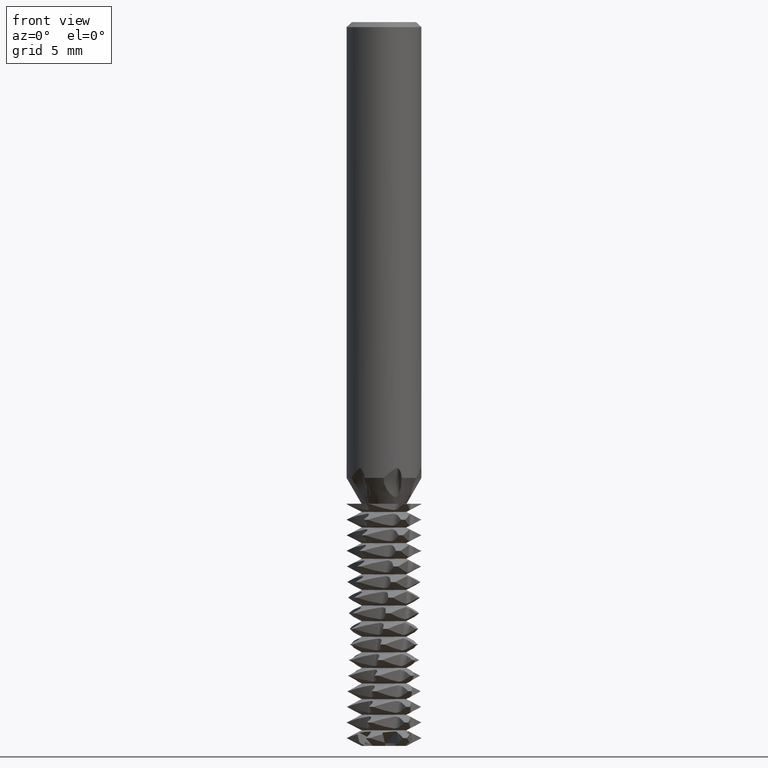
[diagram: clean part render]
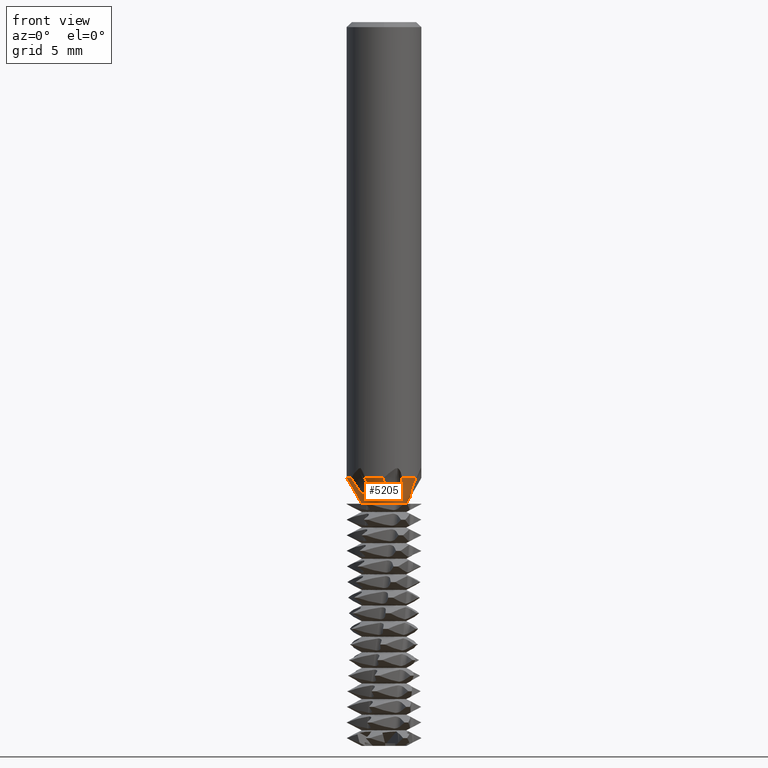
[diagram: same view with one face highlighted and labeled with its STEP entity id]
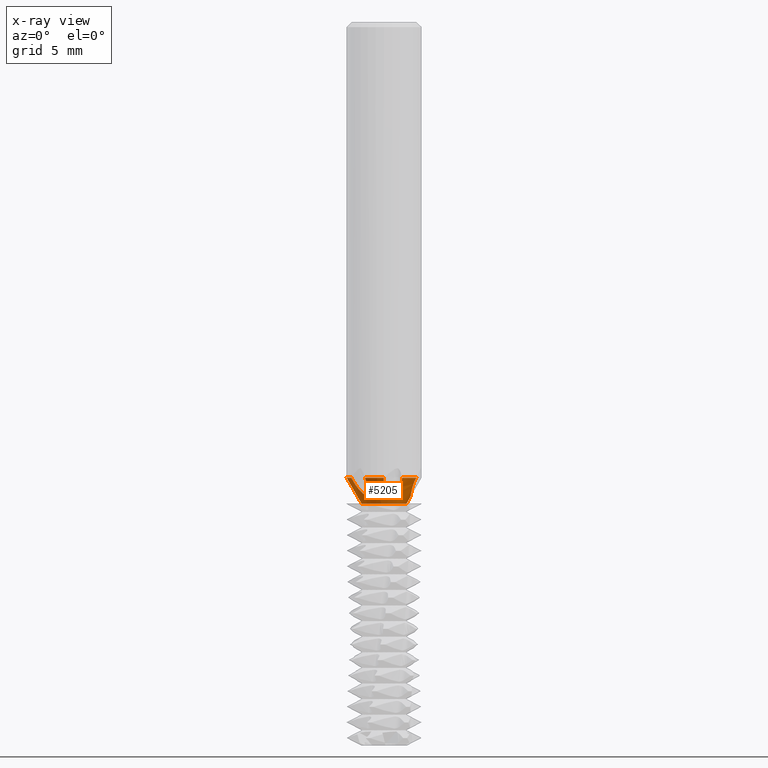
[diagram: x-ray of the same camera — body ghosted, the highlighted face saturated]
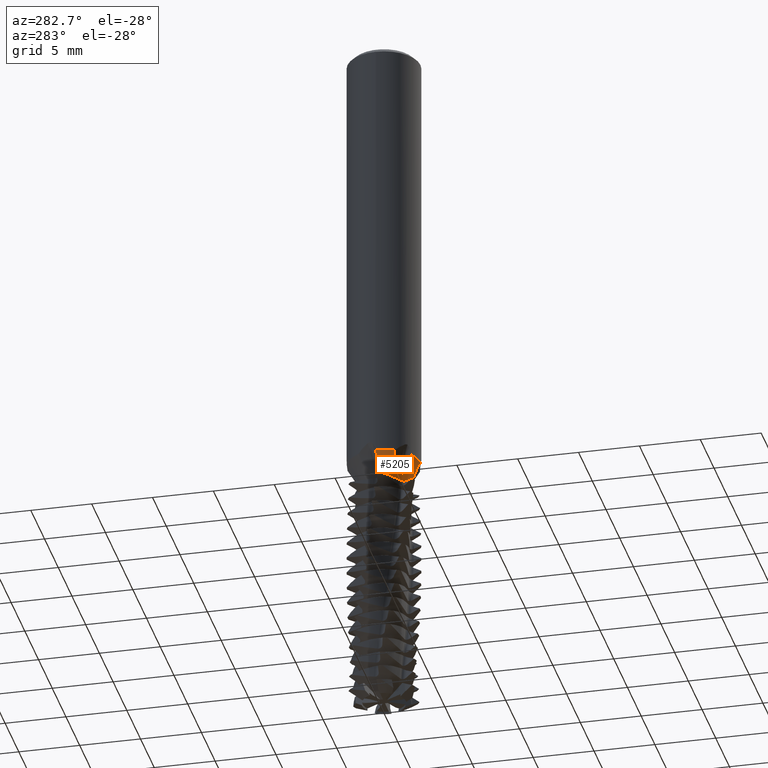
[diagram: same view with one face highlighted and labeled with its STEP entity id]
A machine part, front view. The second image highlights one B-rep face of the part: STEP entity #5205.
The next image is the same camera in x-ray: the body ghosted, the highlighted face saturated — about 0% of this face is hidden behind the body in this view.
A second angle (auxiliary view) of the same face is appended — the face is thin or edge-on in the first view.
In plain terms, the highlighted conical surface has half-angle 30 deg.
Its self-contained STEP definition (entity closure, byte-faithful):
#3307=EDGE_CURVE('',#3537,#7573,#8980,.T.);
#3537=VERTEX_POINT('',#9232);
#3563=VERTEX_POINT('',#9263);
#3577=VERTEX_POINT('',#9278);
#3637=VERTEX_POINT('',#9344);
#3847=VERTEX_POINT('',#9568);
#4025=EDGE_CURVE('',#7573,#3577,#9761,.T.);
#4201=EDGE_CURVE('',#3847,#3563,#9952,.T.);
#4227=EDGE_CURVE('',#5781,#4313,#9979,.T.);
#4313=VERTEX_POINT('',#10074);
#4377=VERTEX_POINT('',#10141);
#4431=EDGE_CURVE('',#3563,#3637,#10198,.T.);
#4681=VERTEX_POINT('',#10474);
#4727=EDGE_CURVE('',#8161,#3847,#10524,.T.);
#4797=VERTEX_POINT('',#10601);
#4867=EDGE_CURVE('',#4797,#8161,#10679,.T.);
#5007=EDGE_CURVE('',#5791,#7347,#10826,.T.);
#5205=ADVANCED_FACE('',(#11044),#11045,.T.);
#5455=VERTEX_POINT('',#11317);
#5781=VERTEX_POINT('',#11674);
#5791=VERTEX_POINT('',#11684);
#5849=EDGE_CURVE('',#6287,#5861,#11747,.T.);
#5861=VERTEX_POINT('',#11760);
#6109=VERTEX_POINT('',#12033);
#6233=EDGE_CURVE('',#6109,#4377,#12170,.T.);
#6287=VERTEX_POINT('',#12226);
#6339=VERTEX_POINT('',#12283);
#6661=EDGE_CURVE('',#4313,#4797,#12629,.T.);
#6895=VERTEX_POINT('',#12884);
#6915=EDGE_CURVE('',#6895,#3537,#12906,.T.);
#6929=EDGE_CURVE('',#3577,#4681,#12920,.T.);
#6989=EDGE_CURVE('',#5455,#6287,#12986,.T.);
#6995=EDGE_CURVE('',#4377,#6339,#12992,.T.);
#7347=VERTEX_POINT('',#13378);
#7373=EDGE_CURVE('',#3637,#6109,#13407,.T.);
#7493=EDGE_CURVE('',#7347,#6895,#13537,.T.);
#7573=VERTEX_POINT('',#13625);
#7983=EDGE_CURVE('',#5861,#5781,#14072,.T.);
#8131=EDGE_CURVE('',#6339,#5791,#14235,.T.);
#8161=VERTEX_POINT('',#14266);
#8185=EDGE_CURVE('',#5455,#4681,#14292,.T.);
#8980=B_SPLINE_CURVE_WITH_KNOTS('',3,(#16272,#16273,#16274,#16275,#16276,#16277,#16278,#16279,#16280,#16281,#16282,#16283,#16284,#16285,#16286,#16287,#16288,#16289,#16290,#16291,#16292,#16293,#16294,#16295,#16296,#16297,#16298,#16299,#16300,#16301,#16302,#16303,#16304,#16305,#16306,#16307,#16308,#16309,#16310,#16311,#16312,#16313,#16314,#16315,#16316,#16317,#16318,#16319,#16320,#16321,#16322,#16323),.UNSPECIFIED.,.F.,.F.,(4,2,2,2,2,2,2,2,2,2,2,2,2,2,2,2,2,2,2,2,2,2,2,2,2,4),(0.0,1.79892156464952,3.59784312929904,5.39676469394855,7.19568625859807,8.09689398824935,8.99810171790062,9.8993094475519,10.8005171772032,11.6961765187938,12.5918358603844,13.2328963691149,13.4855879126679,13.6471176097623,13.8086473068568,13.8697587230916,13.9308701393263,14.0530929717959,14.2345228541612,14.5010364919052,14.7675501296493,15.3132858626618,15.8590215956744,16.9504930616995,18.0499211646433,19.1493492675871),.UNSPECIFIED.);
#9232=CARTESIAN_POINT('',(-2.86296524862622,-2.05320867229369E-016,-36.757826998509));
#9263=CARTESIAN_POINT('',(0.781453119757737,-1.98327804736414,-38.0244497289772));
#9278=CARTESIAN_POINT('',(-2.16499437803357,3.69336668192884E-012,-37.9667480085785));
#9344=CARTESIAN_POINT('',(-0.0278542991693365,-2.99987068688265,-36.5204758472839));
#9568=CARTESIAN_POINT('',(1.02148350098126,-1.86558955432059,-38.0326686084301));
#9761=B_SPLINE_CURVE_WITH_KNOTS('',3,(#20670,#20671,#20672,#20673,#20674,#20675,#20676,#20677,#20678,#20679,#20680,#20681,#20682,#20683,#20684,#20685,#20686,#20687,#20688,#20689,#20690,#20691,#20692,#20693),.UNSPECIFIED.,.F.,.F.,(4,2,2,2,2,2,2,2,2,2,2,4),(0.0,1.3575415971684,1.97770147878749,2.33902558492398,2.55100621588176,2.70607941559937,2.85274831210491,3.03309770705154,3.32341211978844,3.90851040970902,5.28297228147467,7.46680945912721),.UNSPECIFIED.);
#9952=B_SPLINE_CURVE_WITH_KNOTS('',3,(#21849,#21850,#21851,#21852,#21853,#21854,#21855,#21856,#21857,#21858,#21859,#21860,#21861,#21862,#21863,#21864,#21865,#21866,#21867,#21868),.UNSPECIFIED.,.F.,.F.,(4,2,2,2,2,2,2,2,2,4),(0.0,1.30419701519525,2.02390744306957,2.45782086379581,2.70470641663282,2.8805199753024,3.0437800830323,3.23851401184411,3.5448359318654,4.1263073624252),.UNSPECIFIED.);
#9979=B_SPLINE_CURVE_WITH_KNOTS('',3,(#21931,#21932,#21933,#21934,#21935,#21936,#21937,#21938),.UNSPECIFIED.,.F.,.F.,(4,2,2,4),(0.0,0.631354581823274,1.40934126013356,2.09220906285891),.UNSPECIFIED.);
#10074=CARTESIAN_POINT('',(2.58403707332399,-1.52405787412657,-36.5204758472839));
#10141=CARTESIAN_POINT('',(-1.2234688333582,-2.2734790284442,-37.2448558426521));
#10198=B_SPLINE_CURVE_WITH_KNOTS('',3,(#22755,#22756,#22757,#22758,#22759,#22760,#22761,#22762,#22763,#22764),.UNSPECIFIED.,.F.,.F.,(4,2,2,2,4),(0.0,0.546723211207763,1.28128563835644,1.80064566287111,2.30334358990727),.UNSPECIFIED.);
#10474=CARTESIAN_POINT('',(-1.79938617,0.0,-38.6));
#10524=B_SPLINE_CURVE_WITH_KNOTS('',3,(#24409,#24410,#24411,#24412,#24413,#24414,#24415,#24416,#24417,#24418,#24419,#24420,#24421,#24422,#24423,#24424,#24425,#24426,#24427,#24428),.UNSPECIFIED.,.F.,.F.,(4,2,2,2,2,2,2,2,2,4),(0.0,1.30419701519525,2.02390744306957,2.45782086379581,2.70470641663282,2.8805199753024,3.0437800830323,3.23851401184411,3.5448359318654,4.1263073624252),.UNSPECIFIED.);
#10601=CARTESIAN_POINT('',(1.45576062139137,-2.62312047249192,-36.5204758472839));
#10679=B_SPLINE_CURVE_WITH_KNOTS('',3,(#25422,#25423,#25424,#25425,#25426,#25427,#25428,#25429,#25430,#25431,#25432,#25433,#25434,#25435,#25436,#25437,#25438,#25439,#25440,#25441),.UNSPECIFIED.,.F.,.F.,(4,2,2,2,2,2,2,2,2,4),(0.0,1.80060986239747,2.7009147935962,3.60121972479494,4.50152465599367,5.40182958719241,7.20243944958988,8.34679906101014,8.91897886672027,9.4911586724304),.UNSPECIFIED.);
#10826=B_SPLINE_CURVE_WITH_KNOTS('',3,(#26126,#26127,#26128,#26129,#26130,#26131,#26132,#26133,#26134,#26135),.UNSPECIFIED.,.F.,.F.,(4,2,2,2,4),(0.0,0.518910267288691,1.15208444474795,1.9815415407463,2.55415005124956),.UNSPECIFIED.);
#11044=FACE_OUTER_BOUND('',#27237,.T.);
#11045=CONICAL_SURFACE('',#27238,2.399693085,0.523598775598299);
#11317=CARTESIAN_POINT('',(1.79938617,2.20353973676211E-016,-38.6));
#11674=CARTESIAN_POINT('',(2.10829573166421,-0.314880770105264,-38.0244497289772));
#11684=CARTESIAN_POINT('',(-1.32684261190647,-1.66839727725887,-38.0244497289772));
#11747=B_SPLINE_CURVE_WITH_KNOTS('',3,(#30919,#30920,#30921,#30922,#30923,#30924,#30925,#30926,#30927,#30928,#30929,#30930,#30931,#30932,#30933,#30934,#30935,#30936,#30937,#30938,#30939,#30940,#30941,#30942),.UNSPECIFIED.,.F.,.F.,(4,2,2,2,2,2,2,2,2,2,2,4),(0.0,1.35754159716832,1.97770147878734,2.33902558492657,2.5510062158879,2.70607941560779,2.85274831211545,3.03309770706513,3.32341211980714,3.90851040973735,5.28297228152428,7.46680945920899),.UNSPECIFIED.);
#11760=CARTESIAN_POINT('',(2.12638969756715,-0.0481641157638644,-38.0326686084301));
#12033=CARTESIAN_POINT('',(-1.54380865566936,-2.5722859161999,-36.5204758472839));
#12170=B_SPLINE_CURVE_WITH_KNOTS('',3,(#33335,#33336,#33337,#33338,#33339,#33340,#33341,#33342,#33343,#33344,#33345,#33346,#33347,#33348,#33349,#33350,#33351,#33352,#33353,#33354,#33355,#33356,#33357,#33358,#33359,#33360,#33361,#33362,#33363,#33364,#33365,#33366,#33367,#33368,#33369,#33370,#33371,#33372,#33373,#33374,#33375,#33376,#33377,#33378,#33379,#33380),.UNSPECIFIED.,.F.,.F.,(4,2,2,2,2,2,2,2,2,2,2,2,2,2,2,2,2,2,2,2,2,2,4),(0.0,1.19030835882177,2.38061671764355,3.57092507646532,4.7612334352871,5.95154179410887,7.14185015293065,8.33215851175242,9.5224668705742,10.4222211647279,11.3219754588816,11.957849784399,12.2088651086477,12.3697082920767,12.5305514755056,12.5914172977519,12.6522831199983,12.7740147644909,12.9541109301382,13.4819090235225,14.0208308792366,14.5597527349508,15.637596446379),.UNSPECIFIED.);
#12226=CARTESIAN_POINT('',(2.16499437803356,-3.69594273362605E-012,-37.9667480085785));
#12283=CARTESIAN_POINT('',(-1.1049061965859,-1.81742543855674,-38.0326686084301));
#12629=CIRCLE('',#35726,3.0);
#12884=CARTESIAN_POINT('',(-3.0,-3.67381906146713E-016,-36.5204758472839));
#12906=LINE('',#37380,#37381);
#12920=LINE('',#37415,#37416);
#12986=LINE('',#37740,#37741);
#12992=B_SPLINE_CURVE_WITH_KNOTS('',3,(#37755,#37756,#37757,#37758,#37759,#37760,#37761,#37762,#37763,#37764,#37765,#37766,#37767,#37768,#37769,#37770,#37771,#37772,#37773,#37774,#37775,#37776,#37777,#37778),.UNSPECIFIED.,.F.,.F.,(4,2,2,2,2,2,2,2,2,2,2,4),(0.0,1.36486729440892,1.98357384965838,2.32484563536717,2.52868781618786,2.68237915094833,2.82838490438066,3.00987566558399,3.30581825100958,3.9112626719492,6.2724748571968,7.37736186497033),.UNSPECIFIED.);
#13378=CARTESIAN_POINT('',(-2.61189137249331,-1.47581281275608,-36.5204758472839));
#13407=CIRCLE('',#40253,3.0);
#13537=CIRCLE('',#41013,3.0);
#13625=CARTESIAN_POINT('',(-2.58062501028295,-0.0771844237953855,-37.2448558426521));
#14072=B_SPLINE_CURVE_WITH_KNOTS('',3,(#43422,#43423,#43424,#43425,#43426,#43427,#43428,#43429,#43430,#43431,#43432,#43433,#43434,#43435,#43436,#43437,#43438,#43439,#43440,#43441,#43442,#43443,#43444,#43445),.UNSPECIFIED.,.F.,.F.,(4,2,2,2,2,2,2,2,2,2,2,4),(0.0,1.35754159716832,1.97770147878734,2.33902558492657,2.5510062158879,2.70607941560779,2.85274831211545,3.03309770706513,3.32341211980714,3.90851040973735,5.28297228152428,7.46680945920899),.UNSPECIFIED.);
#14235=B_SPLINE_CURVE_WITH_KNOTS('',3,(#44164,#44165,#44166,#44167,#44168,#44169,#44170,#44171,#44172,#44173,#44174,#44175,#44176,#44177,#44178,#44179,#44180,#44181,#44182,#44183,#44184,#44185,#44186,#44187),.UNSPECIFIED.,.F.,.F.,(4,2,2,2,2,2,2,2,2,2,2,4),(0.0,1.36486729440892,1.98357384965838,2.32484563536717,2.52868781618786,2.68237915094833,2.82838490438066,3.00987566558399,3.30581825100958,3.9112626719492,6.2724748571968,7.37736186497033),.UNSPECIFIED.);
#14266=CARTESIAN_POINT('',(1.35715617692474,-2.19629460464882,-37.2448558426521));
#14292=CIRCLE('',#44531,1.79938617);
#16272=CARTESIAN_POINT('',(-5.60865937198833,4.49160101712834,-29.2709615960817));
#16273=CARTESIAN_POINT('',(-5.53417943615459,4.14075545272088,-29.7515122013028));
#16274=CARTESIAN_POINT('',(-5.44437967084137,3.77194824815466,-30.2532068101509));
#16275=CARTESIAN_POINT('',(-5.22340165139991,3.02417260660068,-31.2719130887645));
#16276=CARTESIAN_POINT('',(-5.09211627073529,2.64496117692198,-31.7887231259066));
#16277=CARTESIAN_POINT('',(-4.77622905463111,1.91200858271408,-32.8176739152328));
#16278=CARTESIAN_POINT('',(-4.59104662786163,1.55813602903107,-33.3299095047367));
#16279=CARTESIAN_POINT('',(-4.16227896952514,0.927883891886691,-34.3425408306651));
#16280=CARTESIAN_POINT('',(-3.91808717783326,0.65307615687016,-34.8436572123733));
#16281=CARTESIAN_POINT('',(-3.52382998832685,0.335020471456039,-35.5876191925418));
#16282=CARTESIAN_POINT('',(-3.37970458659504,0.238079482290927,-35.8496736439336));
#16283=CARTESIAN_POINT('',(-3.07518078675563,0.0765550563978221,-36.3901196137103));
#16284=CARTESIAN_POINT('',(-2.91487270829785,0.0120303712761149,-36.6685795759934));
#16285=CARTESIAN_POINT('',(-2.58991798567535,-0.0810987368559561,-37.2293493297819));
#16286=CARTESIAN_POINT('',(-2.42524000643959,-0.109877140415627,-37.5118632278129));
#16287=CARTESIAN_POINT('',(-2.10267367810806,-0.137587492294584,-38.0671127432704));
#16288=CARTESIAN_POINT('',(-1.94479077136786,-0.136675214724876,-38.339843737345));
#16289=CARTESIAN_POINT('',(-1.64604974950732,-0.115680414712945,-38.8585545809848));
#16290=CARTESIAN_POINT('',(-1.4832792880177,-0.0935546612799582,-39.1427549125285));
#16291=CARTESIAN_POINT('',(-1.15864787109507,-0.0295768329008364,-39.7095823477714));
#16292=CARTESIAN_POINT('',(-0.996872798866826,0.0120142582102949,-39.9922880594309));
#16293=CARTESIAN_POINT('',(-0.739436587657934,0.0859679937361255,-40.4289197218717));
#16294=CARTESIAN_POINT('',(-0.609138697059832,0.126616817028404,-40.6459992119376));
#16295=CARTESIAN_POINT('',(-0.444754777656117,0.176164651136265,-40.8894693067361));
#16296=CARTESIAN_POINT('',(-0.386961242049173,0.193227014641144,-40.9706189560452));
#16297=CARTESIAN_POINT('',(-0.300990999917641,0.21626246249406,-41.0761786320026));
#16298=CARTESIAN_POINT('',(-0.262532427396543,0.226042939014822,-41.1199920060905));
#16299=CARTESIAN_POINT('',(-0.178257790441458,0.244014996455153,-41.1971321765933));
#16300=CARTESIAN_POINT('',(-0.132615809415084,0.252222716498536,-41.23064518536));
#16301=CARTESIAN_POINT('',(-0.0629589130829037,0.259557002617503,-41.2551767765774));
#16302=CARTESIAN_POINT('',(-0.0425736441916063,0.261183415970428,-41.2596883161231));
#16303=CARTESIAN_POINT('',(-0.00106468187603169,0.263199845352608,-41.2621702170555));
#16304=CARTESIAN_POINT('',(0.0200606745280759,0.263585693603372,-41.2601160893507));
#16305=CARTESIAN_POINT('',(0.0815823507163757,0.262982255764411,-41.2449274907678));
#16306=CARTESIAN_POINT('',(0.12050574064483,0.260231569038201,-41.2225785834374));
#16307=CARTESIAN_POINT('',(0.201585084383746,0.252293708447356,-41.1625108950263));
#16308=CARTESIAN_POINT('',(0.251656841733575,0.244985636387325,-41.1104907109332));
#16309=CARTESIAN_POINT('',(0.348440086522747,0.22959090888411,-40.9978371366217));
#16310=CARTESIAN_POINT('',(0.405774433016841,0.219249129694851,-40.9196619192423));
#16311=CARTESIAN_POINT('',(0.516001566632785,0.199717509594923,-40.7598523024348));
#16312=CARTESIAN_POINT('',(0.568851010012465,0.19051810011117,-40.6781891809059));
#16313=CARTESIAN_POINT('',(0.713105876462561,0.16687273244768,-40.4502925398268));
#16314=CARTESIAN_POINT('',(0.811393517616152,0.152842439647328,-40.2872560943947));
#16315=CARTESIAN_POINT('',(1.01074255072176,0.130896683559816,-39.9519335659103));
#16316=CARTESIAN_POINT('',(1.11167351430138,0.122958315292648,-39.7795714597108));
#16317=CARTESIAN_POINT('',(1.41350765059492,0.109044430379915,-39.2615928199119));
#16318=CARTESIAN_POINT('',(1.61349469015849,0.113392523494834,-38.9150806723612));
#16319=CARTESIAN_POINT('',(1.97774621799979,0.138991244197607,-38.2826224444054));
#16320=CARTESIAN_POINT('',(2.17803997474166,0.163005422432741,-37.9337201313293));
#16321=CARTESIAN_POINT('',(2.57638909047377,0.230602420482324,-37.2364517165458));
#16322=CARTESIAN_POINT('',(2.77440974580383,0.273968580351373,-36.888044802318));
#16323=CARTESIAN_POINT('',(2.95335182971889,0.319328169013063,-36.5714584443562));
#20670=CARTESIAN_POINT('',(-2.99931765054515,0.0773502190339354,-36.5199304452602));
#20671=CARTESIAN_POINT('',(-2.78074035795917,-0.0241772525160376,-36.9029251428186));
#20672=CARTESIAN_POINT('',(-2.56313900872552,-0.109818554556673,-37.273107019754));
#20673=CARTESIAN_POINT('',(-2.293980617172,-0.0838003532439102,-37.7406960607725));
#20674=CARTESIAN_POINT('',(-2.23004876416744,-0.055364957207353,-37.8534381216402));
#20675=CARTESIAN_POINT('',(-2.15692145503528,0.00519778589404541,-37.9809156987621));
#20676=CARTESIAN_POINT('',(-2.1353285481792,0.0313960376349708,-38.0180814082639));
#20677=CARTESIAN_POINT('',(-2.10967966677262,0.0773256639451755,-38.0602242397376));
#20678=CARTESIAN_POINT('',(-2.10107420516676,0.0970488837897007,-38.073794322822));
#20679=CARTESIAN_POINT('',(-2.09014524125947,0.135908226970162,-38.08886001659));
#20680=CARTESIAN_POINT('',(-2.08690559848674,0.153249604498496,-38.0924058819131));
#20681=CARTESIAN_POINT('',(-2.08385146512164,0.188524853356053,-38.0926736534854));
#20682=CARTESIAN_POINT('',(-2.08395032652219,0.20533692273776,-38.0897475913529));
#20683=CARTESIAN_POINT('',(-2.08707039710097,0.241664690931274,-38.0777239117512));
#20684=CARTESIAN_POINT('',(-2.09070327412928,0.260288962943429,-38.0675753237835));
#20685=CARTESIAN_POINT('',(-2.10288941912787,0.304461948874601,-38.0366159082334));
#20686=CARTESIAN_POINT('',(-2.11343347783885,0.328545680706678,-38.0122242543083));
#20687=CARTESIAN_POINT('',(-2.14717586468728,0.390460560511437,-37.9371674222859));
#20688=CARTESIAN_POINT('',(-2.17619369780695,0.424471215292881,-37.8764858430212));
#20689=CARTESIAN_POINT('',(-2.27017118765268,0.514622779260884,-37.6856954438428));
#20690=CARTESIAN_POINT('',(-2.35446214160111,0.561459651964347,-37.5243387682715));
#20691=CARTESIAN_POINT('',(-2.56965366136249,0.660463455586712,-37.121442192171));
#20692=CARTESIAN_POINT('',(-2.71840490010319,0.708044347968236,-36.8514791242517));
#20693=CARTESIAN_POINT('',(-2.8940623821179,0.791386349178679,-36.5199304452602));
#21849=CARTESIAN_POINT('',(1.4326715706009,-2.63616038890813,-36.5199304452602));
#21850=CARTESIAN_POINT('',(1.4121477635746,-2.40553621100626,-36.8878753704346));
#21851=CARTESIAN_POINT('',(1.38011736951472,-2.19119231357815,-37.2313035371813));
#21852=CARTESIAN_POINT('',(1.23601169008594,-1.95883453790594,-37.70486165613));
#21853=CARTESIAN_POINT('',(1.17614696554221,-1.91189718679116,-37.8292139108563));
#21854=CARTESIAN_POINT('',(1.08485365479178,-1.87307310841984,-37.9676994732728));
#21855=CARTESIAN_POINT('',(1.04954660626413,-1.86586212340776,-38.0090431203485));
#21856=CARTESIAN_POINT('',(0.994786155433301,-1.86516119027006,-38.0554294237094));
#21857=CARTESIAN_POINT('',(0.972769701248624,-1.86707376060821,-38.0703832339884));
#21858=CARTESIAN_POINT('',(0.932716017237476,-1.87641083475452,-38.0873305155262));
#21859=CARTESIAN_POINT('',(0.915800170445377,-1.88198786244427,-38.0916205061569));
#21860=CARTESIAN_POINT('',(0.883252680953473,-1.89649396186954,-38.0931504696259));
#21861=CARTESIAN_POINT('',(0.868566333956174,-1.90473110916482,-38.0908270668656));
#21862=CARTESIAN_POINT('',(0.838604289870541,-1.92489463035173,-38.0801044190121));
#21863=CARTESIAN_POINT('',(0.824355167800011,-1.93682549719624,-38.0708374757733));
#21864=CARTESIAN_POINT('',(0.792550562957857,-1.96786974013774,-38.0423894629918));
#21865=CARTESIAN_POINT('',(0.777079961661563,-1.98786387887037,-38.0199573053666));
#21866=CARTESIAN_POINT('',(0.741608941186446,-2.04277722064068,-37.9529607286589));
#21867=CARTESIAN_POINT('',(0.726571475822743,-2.08030873736105,-37.9001458389201));
#21868=CARTESIAN_POINT('',(0.716673857411956,-2.1142734980412,-37.8499343938791));
#21931=CARTESIAN_POINT('',(2.09509680968964,-0.208850370411364,-38.0698286646325));
#21932=CARTESIAN_POINT('',(2.1193620386549,-0.40385600006253,-37.994503712593));
#21933=CARTESIAN_POINT('',(2.14115147770518,-0.583213196614271,-37.880755503684));
#21934=CARTESIAN_POINT('',(2.20345356249672,-0.938427454978146,-37.5794395868787));
#21935=CARTESIAN_POINT('',(2.24897310971544,-1.1140804265228,-37.3722154582484));
#21936=CARTESIAN_POINT('',(2.38848409656492,-1.37722231159314,-36.9430671513303));
#21937=CARTESIAN_POINT('',(2.47440417476681,-1.4694544383719,-36.7320830708087));
#21938=CARTESIAN_POINT('',(2.58431959452508,-1.52419869394054,-36.5199304452602));
#22755=CARTESIAN_POINT('',(1.01976561992589,-1.80257359399454,-38.129487284743));
#22756=CARTESIAN_POINT('',(0.878935224842574,-1.91025594990024,-38.0872603053488));
#22757=CARTESIAN_POINT('',(0.74497159022499,-2.00981100463904,-38.0124319550598));
#22758=CARTESIAN_POINT('',(0.459415691898448,-2.23109272981893,-37.7853722074075));
#22759=CARTESIAN_POINT('',(0.313834007096708,-2.35185289586446,-37.6123607136495));
#22760=CARTESIAN_POINT('',(0.123313229185542,-2.56153005135065,-37.2772722349332));
#22761=CARTESIAN_POINT('',(0.0619591982514418,-2.64892298988635,-37.1278324575503));
#22762=CARTESIAN_POINT('',(-0.0157184765240753,-2.8244061994484,-36.8250017876203));
#22763=CARTESIAN_POINT('',(-0.0332716911033514,-2.91190421889885,-36.6727446304951));
#22764=CARTESIAN_POINT('',(-0.027834992105034,-3.00018576732688,-36.5199304452602));
#24409=CARTESIAN_POINT('',(1.4326715706009,-2.63616038890813,-36.5199304452602));
#24410=CARTESIAN_POINT('',(1.4121477635746,-2.40553621100626,-36.8878753704346));
#24411=CARTESIAN_POINT('',(1.38011736951472,-2.19119231357815,-37.2313035371813));
#24412=CARTESIAN_POINT('',(1.23601169008594,-1.95883453790594,-37.70486165613));
#24413=CARTESIAN_POINT('',(1.17614696554221,-1.91189718679116,-37.8292139108563));
#24414=CARTESIAN_POINT('',(1.08485365479178,-1.87307310841984,-37.9676994732728));
#24415=CARTESIAN_POINT('',(1.04954660626413,-1.86586212340776,-38.0090431203485));
#24416=CARTESIAN_POINT('',(0.994786155433301,-1.86516119027006,-38.0554294237094));
#24417=CARTESIAN_POINT('',(0.972769701248624,-1.86707376060821,-38.0703832339884));
#24418=CARTESIAN_POINT('',(0.932716017237476,-1.87641083475452,-38.0873305155262));
#24419=CARTESIAN_POINT('',(0.915800170445377,-1.88198786244427,-38.0916205061569));
#24420=CARTESIAN_POINT('',(0.883252680953473,-1.89649396186954,-38.0931504696259));
#24421=CARTESIAN_POINT('',(0.868566333956174,-1.90473110916482,-38.0908270668656));
#24422=CARTESIAN_POINT('',(0.838604289870541,-1.92489463035173,-38.0801044190121));
#24423=CARTESIAN_POINT('',(0.824355167800011,-1.93682549719624,-38.0708374757733));
#24424=CARTESIAN_POINT('',(0.792550562957857,-1.96786974013774,-38.0423894629918));
#24425=CARTESIAN_POINT('',(0.777079961661563,-1.98786387887037,-38.0199573053666));
#24426=CARTESIAN_POINT('',(0.741608941186446,-2.04277722064068,-37.9529607286589));
#24427=CARTESIAN_POINT('',(0.726571475822743,-2.08030873736105,-37.9001458389201));
#24428=CARTESIAN_POINT('',(0.716673857411956,-2.1142734980412,-37.8499343938791));
#25422=CARTESIAN_POINT('',(0.50828882274157,-5.39293261923411,-32.334398295234));
#25423=CARTESIAN_POINT('',(0.727159299517184,-5.09727424504493,-32.8086617520306));
#25424=CARTESIAN_POINT('',(0.937200240628333,-4.7707084657746,-33.3064324242182));
#25425=CARTESIAN_POINT('',(1.18929089181496,-4.25275422978241,-34.0710190523473));
#25426=CARTESIAN_POINT('',(1.2626631821263,-4.07558613076526,-34.3290756558686));
#25427=CARTESIAN_POINT('',(1.37982505765425,-3.71803681753632,-34.8504126698905));
#25428=CARTESIAN_POINT('',(1.42351902662357,-3.53769291246733,-35.1137401502309));
#25429=CARTESIAN_POINT('',(1.4759134505413,-3.1811165294562,-35.6448437293699));
#25430=CARTESIAN_POINT('',(1.48460684233627,-3.00460070352388,-35.9131925528268));
#25431=CARTESIAN_POINT('',(1.46682246990542,-2.6624337906922,-36.4530569456803));
#25432=CARTESIAN_POINT('',(1.44040518641201,-2.4968181173184,-36.7245969500489));
#25433=CARTESIAN_POINT('',(1.31655444468885,-2.023519318291,-37.5382394821325));
#25434=CARTESIAN_POINT('',(1.17462618306515,-1.74014436510906,-38.0802087056197));
#25435=CARTESIAN_POINT('',(0.900016487856236,-1.3333251398853,-38.9303481648516));
#25436=CARTESIAN_POINT('',(0.768619577028151,-1.16978617912774,-39.2933077872098));
#25437=CARTESIAN_POINT('',(0.552236101124867,-0.935751102511129,-39.83500047241));
#25438=CARTESIAN_POINT('',(0.477047814337593,-0.859459020344415,-40.0150965609125));
#25439=CARTESIAN_POINT('',(0.324221091313548,-0.710758635767507,-40.3648263833099));
#25440=CARTESIAN_POINT('',(0.246692861006792,-0.638558150722257,-40.5345965838172));
#25441=CARTESIAN_POINT('',(0.169079919278552,-0.566231989213919,-40.6930951463071));
#26126=CARTESIAN_POINT('',(-0.813348814278704,-1.88144440006249,-38.1664018016368));
#26127=CARTESIAN_POINT('',(-0.973835935929987,-1.81750989663947,-38.1577464692863));
#26128=CARTESIAN_POINT('',(-1.12739839133456,-1.75268060280297,-38.1170104342852));
#26129=CARTESIAN_POINT('',(-1.45289982908503,-1.61509831580648,-37.9680385455456));
#26130=CARTESIAN_POINT('',(-1.61695992744195,-1.54602235391747,-37.8490754803104));
#26131=CARTESIAN_POINT('',(-1.96270880091452,-1.42402769519572,-37.5281107321194));
#26132=CARTESIAN_POINT('',(-2.14622852872914,-1.37848872633919,-37.3006498727541));
#26133=CARTESIAN_POINT('',(-2.42414255146934,-1.38939340452583,-36.8780621086201));
#26134=CARTESIAN_POINT('',(-2.52538588945138,-1.41858044835737,-36.6996895165351));
#26135=CARTESIAN_POINT('',(-2.61189137194558,-1.47581281307189,-36.5204758472839));
#27237=EDGE_LOOP('',(#48544,#48545,#48546,#48547,#48548,#48549,#48550,#48551,#48552,#48553,#48554,#48555,#48556,#48557,#48558,#48559,#48560,#48561,#48562,#48563));
#27238=AXIS2_PLACEMENT_3D('',#48564,#48565,#48566);
#30919=CARTESIAN_POINT('',(2.99931765054516,-0.077350219033931,-36.5199304452602));
#30920=CARTESIAN_POINT('',(2.78074035795918,0.0241772525160363,-36.9029251428186));
#30921=CARTESIAN_POINT('',(2.56313900872552,0.109818554556678,-37.273107019754));
#30922=CARTESIAN_POINT('',(2.293980617172,0.0838003532439142,-37.7406960607725));
#30923=CARTESIAN_POINT('',(2.23004876416744,0.0553649572073585,-37.8534381216402));
#30924=CARTESIAN_POINT('',(2.15692145503508,-0.00519778589421713,-37.9809156987625));
#30925=CARTESIAN_POINT('',(2.13532854817907,-0.0313960376352044,-38.0180814082641));
#30926=CARTESIAN_POINT('',(2.10967966677261,-0.0773256639451928,-38.0602242397376));
#30927=CARTESIAN_POINT('',(2.10107420516676,-0.0970488837897089,-38.073794322822));
#30928=CARTESIAN_POINT('',(2.09014524125948,-0.135908226970123,-38.0888600165899));
#30929=CARTESIAN_POINT('',(2.08690559848675,-0.153249604498476,-38.0924058819131));
#30930=CARTESIAN_POINT('',(2.08385146512164,-0.188524853356067,-38.0926736534854));
#30931=CARTESIAN_POINT('',(2.08395032652219,-0.205336922737791,-38.0897475913529));
#30932=CARTESIAN_POINT('',(2.08707039710097,-0.241664690931281,-38.0777239117512));
#30933=CARTESIAN_POINT('',(2.09070327412929,-0.260288962943446,-38.0675753237835));
#30934=CARTESIAN_POINT('',(2.10288941912787,-0.304461948874596,-38.0366159082334));
#30935=CARTESIAN_POINT('',(2.11343347783885,-0.328545680706661,-38.0122242543084));
#30936=CARTESIAN_POINT('',(2.14717586468729,-0.390460560511436,-37.9371674222859));
#30937=CARTESIAN_POINT('',(2.17619369780694,-0.424471215292871,-37.8764858430213));
#30938=CARTESIAN_POINT('',(2.27017118765269,-0.514622779260879,-37.6856954438428));
#30939=CARTESIAN_POINT('',(2.3544621416011,-0.561459651964337,-37.5243387682716));
#30940=CARTESIAN_POINT('',(2.56965366136252,-0.660463455586717,-37.121442192171));
#30941=CARTESIAN_POINT('',(2.71840490010321,-0.708044347968239,-36.8514791242516));
#30942=CARTESIAN_POINT('',(2.89406238211791,-0.791386349178675,-36.5199304452602));
#33335=CARTESIAN_POINT('',(-5.83441402743957,-2.86397111377618,-30.4592683323798));
#33336=CARTESIAN_POINT('',(-5.60171268992832,-2.92449781508989,-30.7748829783254));
#33337=CARTESIAN_POINT('',(-5.36016006125956,-2.98057702938254,-31.0977190018805));
#33338=CARTESIAN_POINT('',(-4.86453681766808,-3.07648730698623,-31.7516272203684));
#33339=CARTESIAN_POINT('',(-4.61042195843585,-3.11632371720873,-32.0826650953121));
#33340=CARTESIAN_POINT('',(-4.09690548905642,-3.1707785600107,-32.7485587867138));
#33341=CARTESIAN_POINT('',(-3.83745730031139,-3.18535831596596,-33.0833802455012));
#33342=CARTESIAN_POINT('',(-3.32414627188217,-3.17900091702108,-33.7552716727284));
#33343=CARTESIAN_POINT('',(-3.07031207174259,-3.15792468724515,-34.0923621976047));
#33344=CARTESIAN_POINT('',(-2.58341541718426,-3.07108630101756,-34.7705258753371));
#33345=CARTESIAN_POINT('',(-2.34969859292461,-3.00489007292132,-35.1129926229382));
#33346=CARTESIAN_POINT('',(-1.92003392104834,-2.8250618141729,-35.8039999270172));
#33347=CARTESIAN_POINT('',(-1.7243306917179,-2.71146032738068,-36.1527005033528));
#33348=CARTESIAN_POINT('',(-1.38047131440171,-2.44641810652894,-36.8531634416241));
#33349=CARTESIAN_POINT('',(-1.23203188763221,-2.29512786160571,-37.2052663013797));
#33350=CARTESIAN_POINT('',(-0.979473837557517,-1.96978931635657,-37.9068828398947));
#33351=CARTESIAN_POINT('',(-0.875138288445394,-1.79589017820278,-38.2563875743078));
#33352=CARTESIAN_POINT('',(-0.722543726192209,-1.48274758209438,-38.8597366919671));
#33353=CARTESIAN_POINT('',(-0.66008110538618,-1.33000794377295,-39.1452347739025));
#33354=CARTESIAN_POINT('',(-0.552827820545555,-1.01537249594726,-39.7146343542066));
#33355=CARTESIAN_POINT('',(-0.507855256581878,-0.853688833648504,-39.9986187792668));
#33356=CARTESIAN_POINT('',(-0.44332725543859,-0.593755357614781,-40.4348388796115));
#33357=CARTESIAN_POINT('',(-0.413617797184692,-0.461560569499526,-40.6500961009579));
#33358=CARTESIAN_POINT('',(-0.374575491529599,-0.295568991304846,-40.8915904532959));
#33359=CARTESIAN_POINT('',(-0.360519446103568,-0.237323370478996,-40.9721588473647));
#33360=CARTESIAN_POINT('',(-0.337570624976057,-0.151776021347176,-41.0770516256008));
#33361=CARTESIAN_POINT('',(-0.326834716654855,-0.113709911815513,-41.1206470615903));
#33362=CARTESIAN_POINT('',(-0.300326849252964,-0.0320234316989344,-41.1973922287145));
#33363=CARTESIAN_POINT('',(-0.284651376512824,0.0114600169612666,-41.2307208284987));
#33364=CARTESIAN_POINT('',(-0.256293827081324,0.0751838942556378,-41.255149715936));
#33365=CARTESIAN_POINT('',(-0.247545980698999,0.0935801452027333,-41.259654944278));
#33366=CARTESIAN_POINT('',(-0.228616220088076,0.130403776237675,-41.2621753959497));
#33367=CARTESIAN_POINT('',(-0.218429832555241,0.148830531053207,-41.2601660962038));
#33368=CARTESIAN_POINT('',(-0.187269040948377,0.201649572085958,-41.2451598777483));
#33369=CARTESIAN_POINT('',(-0.165503999918964,0.233904458148988,-41.2229921304497));
#33370=CARTESIAN_POINT('',(-0.11834127270473,0.299869332955006,-41.1634393163024));
#33371=CARTESIAN_POINT('',(-0.0871698175106341,0.3393791780453,-41.1118946449681));
#33372=CARTESIAN_POINT('',(0.0104956708598227,0.459922086993823,-40.9341020012875));
#33373=CARTESIAN_POINT('',(0.0868028460953419,0.548132363957664,-40.758126166508));
#33374=CARTESIAN_POINT('',(0.208650365687393,0.696783530060625,-40.4589800548884));
#33375=CARTESIAN_POINT('',(0.269322099147749,0.773921228750604,-40.2980371480404));
#33376=CARTESIAN_POINT('',(0.386861800615448,0.933508677756694,-39.9669891927775));
#33377=CARTESIAN_POINT('',(0.44368518986876,1.01583662686315,-39.7968096170227));
#33378=CARTESIAN_POINT('',(0.605286781698561,1.26681830507303,-39.2853632551972));
#33379=CARTESIAN_POINT('',(0.700858548681554,1.4397178719774,-38.9431882340108));
#33380=CARTESIAN_POINT('',(0.780102229566555,1.60093659133827,-38.63204201287));
#35726=AXIS2_PLACEMENT_3D('',#49825,#49826,#49827);
#37380=CARTESIAN_POINT('',(-2.399693085,-2.93867939911462E-016,-37.5602379236419));
#37381=VECTOR('',#50013,1.0);
#37415=CARTESIAN_POINT('',(-2.399693085,-2.93867939911462E-016,-37.5602379236419));
#37416=VECTOR('',#50017,1.0);
#37740=CARTESIAN_POINT('',(2.399693085,2.93867939911462E-016,-37.5602379236419));
#37741=VECTOR('',#50078,1.0);
#37755=CARTESIAN_POINT('',(-1.56636524419795,-2.55861288979784,-36.5204758472839));
#37756=CARTESIAN_POINT('',(-1.36809532512385,-2.41932503659462,-36.9055377657695));
#37757=CARTESIAN_POINT('',(-1.18278847297916,-2.27181399986886,-37.2804279435055));
#37758=CARTESIAN_POINT('',(-1.07298392498043,-2.02290856308471,-37.7504895813225));
#37759=CARTESIAN_POINT('',(-1.0667844566877,-1.95287147091307,-37.8629868845877));
#37760=CARTESIAN_POINT('',(-1.0846080026135,-1.86064569347707,-37.9865191449841));
#37761=CARTESIAN_POINT('',(-1.09647938019785,-1.83033702116111,-38.0213882466687));
#37762=CARTESIAN_POINT('',(-1.12283589674817,-1.78696711529985,-38.0613336965955));
#37763=CARTESIAN_POINT('',(-1.1353617391885,-1.77020903115711,-38.0742946291041));
#37764=CARTESIAN_POINT('',(-1.16311022892926,-1.74185947189296,-38.0889751816169));
#37765=CARTESIAN_POINT('',(-1.17651909866524,-1.73041269647596,-38.0924615100857));
#37766=CARTESIAN_POINT('',(-1.20560176955557,-1.71015174745887,-38.0926264261199));
#37767=CARTESIAN_POINT('',(-1.22026723354675,-1.70183415828831,-38.089632420162));
#37768=CARTESIAN_POINT('',(-1.25358963590282,-1.68630764515767,-38.0773752764895));
#37769=CARTESIAN_POINT('',(-1.27177756313785,-1.6801258391947,-38.0669810727645));
#37770=CARTESIAN_POINT('',(-1.31701469241095,-1.66855090331476,-38.0351005048705));
#37771=CARTESIAN_POINT('',(-1.34377718524821,-1.66576601337845,-38.0098112872369));
#37772=CARTESIAN_POINT('',(-1.41648372948927,-1.66458033962535,-37.9314765715331));
#37773=CARTESIAN_POINT('',(-1.46200634054439,-1.67366617164395,-37.8676606264894));
#37774=CARTESIAN_POINT('',(-1.65066169517089,-1.73152567623706,-37.5755348569205));
#37775=CARTESIAN_POINT('',(-1.79135484892136,-1.84929797906314,-37.2573719611907));
#37776=CARTESIAN_POINT('',(-2.00747826691529,-2.02018452491634,-36.7837798585416));
#37777=CARTESIAN_POINT('',(-2.06387219454791,-2.06332678938192,-36.6619250162682));
#37778=CARTESIAN_POINT('',(-2.13212867621483,-2.11045665819826,-36.5204758472839));
#40253=AXIS2_PLACEMENT_3D('',#50384,#50385,#50386);
#41013=AXIS2_PLACEMENT_3D('',#50498,#50499,#50500);
#43422=CARTESIAN_POINT('',(2.99931765054516,-0.077350219033931,-36.5199304452602));
#43423=CARTESIAN_POINT('',(2.78074035795918,0.0241772525160363,-36.9029251428186));
#43424=CARTESIAN_POINT('',(2.56313900872552,0.109818554556678,-37.273107019754));
#43425=CARTESIAN_POINT('',(2.293980617172,0.0838003532439142,-37.7406960607725));
#43426=CARTESIAN_POINT('',(2.23004876416744,0.0553649572073585,-37.8534381216402));
#43427=CARTESIAN_POINT('',(2.15692145503508,-0.00519778589421713,-37.9809156987625));
#43428=CARTESIAN_POINT('',(2.13532854817907,-0.0313960376352044,-38.0180814082641));
#43429=CARTESIAN_POINT('',(2.10967966677261,-0.0773256639451928,-38.0602242397376));
#43430=CARTESIAN_POINT('',(2.10107420516676,-0.0970488837897089,-38.073794322822));
#43431=CARTESIAN_POINT('',(2.09014524125948,-0.135908226970123,-38.0888600165899));
#43432=CARTESIAN_POINT('',(2.08690559848675,-0.153249604498476,-38.0924058819131));
#43433=CARTESIAN_POINT('',(2.08385146512164,-0.188524853356067,-38.0926736534854));
#43434=CARTESIAN_POINT('',(2.08395032652219,-0.205336922737791,-38.0897475913529));
#43435=CARTESIAN_POINT('',(2.08707039710097,-0.241664690931281,-38.0777239117512));
#43436=CARTESIAN_POINT('',(2.09070327412929,-0.260288962943446,-38.0675753237835));
#43437=CARTESIAN_POINT('',(2.10288941912787,-0.304461948874596,-38.0366159082334));
#43438=CARTESIAN_POINT('',(2.11343347783885,-0.328545680706661,-38.0122242543084));
#43439=CARTESIAN_POINT('',(2.14717586468729,-0.390460560511436,-37.9371674222859));
#43440=CARTESIAN_POINT('',(2.17619369780694,-0.424471215292871,-37.8764858430213));
#43441=CARTESIAN_POINT('',(2.27017118765269,-0.514622779260879,-37.6856954438428));
#43442=CARTESIAN_POINT('',(2.3544621416011,-0.561459651964337,-37.5243387682716));
#43443=CARTESIAN_POINT('',(2.56965366136252,-0.660463455586717,-37.121442192171));
#43444=CARTESIAN_POINT('',(2.71840490010321,-0.708044347968239,-36.8514791242516));
#43445=CARTESIAN_POINT('',(2.89406238211791,-0.791386349178675,-36.5199304452602));
#44164=CARTESIAN_POINT('',(-1.56636524419795,-2.55861288979784,-36.5204758472839));
#44165=CARTESIAN_POINT('',(-1.36809532512385,-2.41932503659462,-36.9055377657695));
#44166=CARTESIAN_POINT('',(-1.18278847297916,-2.27181399986886,-37.2804279435055));
#44167=CARTESIAN_POINT('',(-1.07298392498043,-2.02290856308471,-37.7504895813225));
#44168=CARTESIAN_POINT('',(-1.0667844566877,-1.95287147091307,-37.8629868845877));
#44169=CARTESIAN_POINT('',(-1.0846080026135,-1.86064569347707,-37.9865191449841));
#44170=CARTESIAN_POINT('',(-1.09647938019785,-1.83033702116111,-38.0213882466687));
#44171=CARTESIAN_POINT('',(-1.12283589674817,-1.78696711529985,-38.0613336965955));
#44172=CARTESIAN_POINT('',(-1.1353617391885,-1.77020903115711,-38.0742946291041));
#44173=CARTESIAN_POINT('',(-1.16311022892926,-1.74185947189296,-38.0889751816169));
#44174=CARTESIAN_POINT('',(-1.17651909866524,-1.73041269647596,-38.0924615100857));
#44175=CARTESIAN_POINT('',(-1.20560176955557,-1.71015174745887,-38.0926264261199));
#44176=CARTESIAN_POINT('',(-1.22026723354675,-1.70183415828831,-38.089632420162));
#44177=CARTESIAN_POINT('',(-1.25358963590282,-1.68630764515767,-38.0773752764895));
#44178=CARTESIAN_POINT('',(-1.27177756313785,-1.6801258391947,-38.0669810727645));
#44179=CARTESIAN_POINT('',(-1.31701469241095,-1.66855090331476,-38.0351005048705));
#44180=CARTESIAN_POINT('',(-1.34377718524821,-1.66576601337845,-38.0098112872369));
#44181=CARTESIAN_POINT('',(-1.41648372948927,-1.66458033962535,-37.9314765715331));
#44182=CARTESIAN_POINT('',(-1.46200634054439,-1.67366617164395,-37.8676606264894));
#44183=CARTESIAN_POINT('',(-1.65066169517089,-1.73152567623706,-37.5755348569205));
#44184=CARTESIAN_POINT('',(-1.79135484892136,-1.84929797906314,-37.2573719611907));
#44185=CARTESIAN_POINT('',(-2.00747826691529,-2.02018452491634,-36.7837798585416));
#44186=CARTESIAN_POINT('',(-2.06387219454791,-2.06332678938192,-36.6619250162682));
#44187=CARTESIAN_POINT('',(-2.13212867621483,-2.11045665819826,-36.5204758472839));
#44531=AXIS2_PLACEMENT_3D('',#51176,#51177,#51178);
#48544=ORIENTED_EDGE('',*,*,#6915,.T.);
#48545=ORIENTED_EDGE('',*,*,#3307,.T.);
#48546=ORIENTED_EDGE('',*,*,#4025,.T.);
#48547=ORIENTED_EDGE('',*,*,#6929,.T.);
#48548=ORIENTED_EDGE('',*,*,#8185,.F.);
#48549=ORIENTED_EDGE('',*,*,#6989,.T.);
#48550=ORIENTED_EDGE('',*,*,#5849,.T.);
#48551=ORIENTED_EDGE('',*,*,#7983,.T.);
#48552=ORIENTED_EDGE('',*,*,#4227,.T.);
#48553=ORIENTED_EDGE('',*,*,#6661,.T.);
#48554=ORIENTED_EDGE('',*,*,#4867,.T.);
#48555=ORIENTED_EDGE('',*,*,#4727,.T.);
#48556=ORIENTED_EDGE('',*,*,#4201,.T.);
#48557=ORIENTED_EDGE('',*,*,#4431,.T.);
#48558=ORIENTED_EDGE('',*,*,#7373,.T.);
#48559=ORIENTED_EDGE('',*,*,#6233,.T.);
#48560=ORIENTED_EDGE('',*,*,#6995,.T.);
#48561=ORIENTED_EDGE('',*,*,#8131,.T.);
#48562=ORIENTED_EDGE('',*,*,#5007,.T.);
#48563=ORIENTED_EDGE('',*,*,#7493,.T.);
#48564=CARTESIAN_POINT('',(0.0,0.0,-37.5602379236419));
#48565=DIRECTION('',(-0.0,-0.0,1.0));
#48566=DIRECTION('',(-1.0,0.0,0.0));
#49825=CARTESIAN_POINT('',(0.0,0.0,-36.5204758472839));
#49826=DIRECTION('',(0.0,0.0,-1.0));
#49827=DIRECTION('',(-1.0,0.0,0.0));
#50013=DIRECTION('',(0.5,6.12303176911189E-017,-0.866025403784439));
#50017=DIRECTION('',(0.5,6.12303176911189E-017,-0.866025403784439));
#50078=DIRECTION('',(0.5,6.12303176911189E-017,0.866025403784439));
#50384=CARTESIAN_POINT('',(0.0,0.0,-36.5204758472839));
#50385=DIRECTION('',(0.0,0.0,-1.0));
#50386=DIRECTION('',(-1.0,0.0,0.0));
#50498=CARTESIAN_POINT('',(0.0,0.0,-36.5204758472839));
#50499=DIRECTION('',(0.0,0.0,-1.0));
#50500=DIRECTION('',(-1.0,0.0,0.0));
#51176=CARTESIAN_POINT('',(0.0,0.0,-38.6));
#51177=DIRECTION('',(0.0,0.0,-1.0));
#51178=DIRECTION('',(-1.0,0.0,0.0));